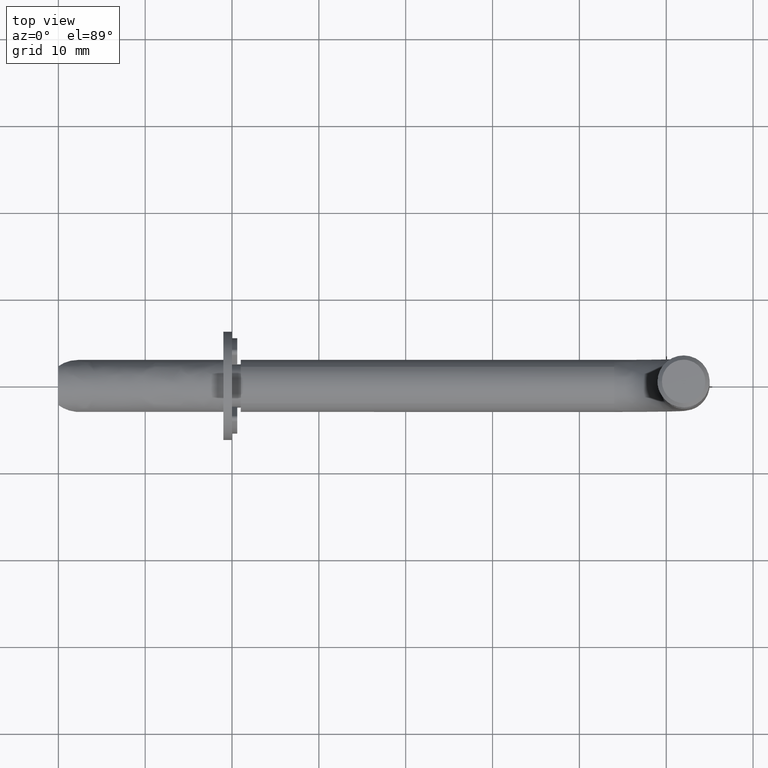
[diagram: clean part render]
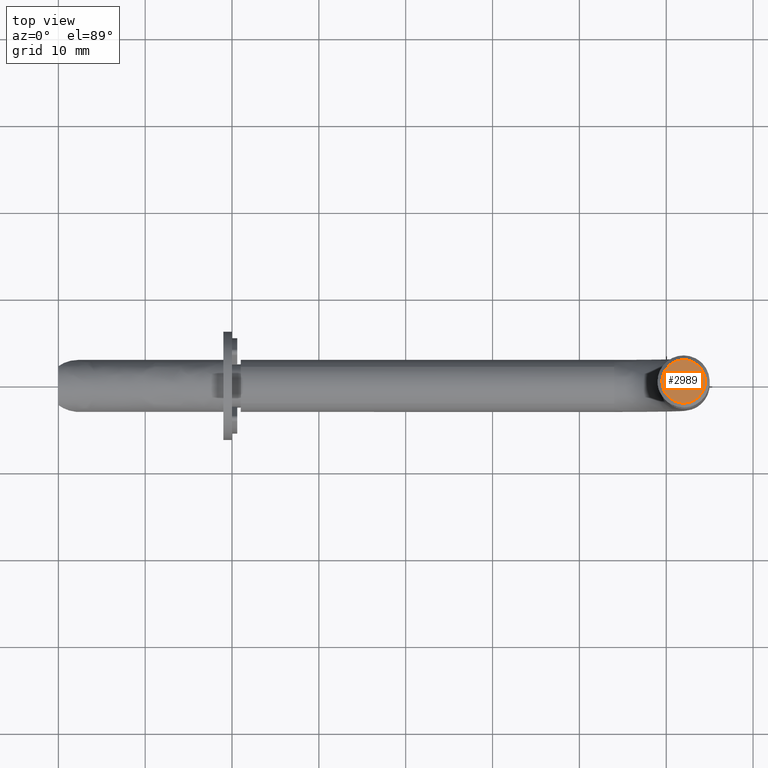
[diagram: same view with one face highlighted and labeled with its STEP entity id]
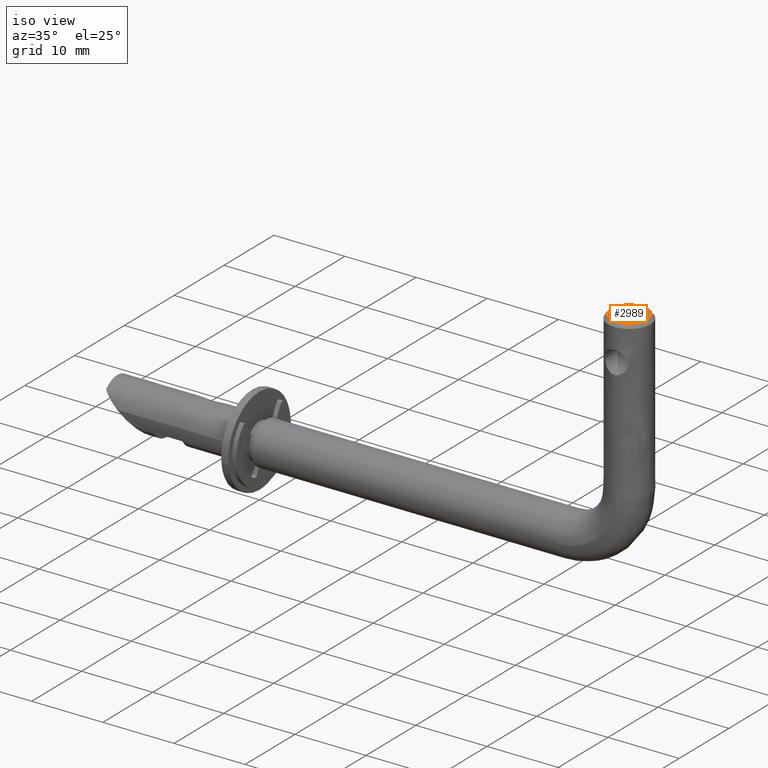
[diagram: same view with one face highlighted and labeled with its STEP entity id]
A machine part, top view. The second image highlights one B-rep face of the part: STEP entity #2989.
A second angle (iso view) of the same face is appended — the face is thin or edge-on in the first view.
In plain terms, the highlighted face is a freeform B-spline surface patch.
Its self-contained STEP definition (entity closure, byte-faithful):
#1473=CARTESIAN_POINT('',(71.435948886514353,2.435545382864706,45.999999999918003));
#1474=VERTEX_POINT('',#1473);
#1480=CARTESIAN_POINT('',(71.999969000000092,2.500000000000007,46.0));
#1481=VERTEX_POINT('',#1480);
#1482=CARTESIAN_POINT('',(71.999969000000092,2.500000000000007,46.0));
#1483=CARTESIAN_POINT('',(71.714276097574796,2.500000000000007,46.0));
#1484=CARTESIAN_POINT('',(71.435948886514353,2.435545382864706,45.999999999917989));
#1492=(BOUNDED_CURVE()B_SPLINE_CURVE(2,(#1482,#1483,#1484),.UNSPECIFIED.,.F.,.U.)B_SPLINE_CURVE_WITH_KNOTS((3,3),(0.0,0.038577028308984),.UNSPECIFIED.)CURVE()GEOMETRIC_REPRESENTATION_ITEM()RATIONAL_B_SPLINE_CURVE((1.0,0.954804200025295,0.923556557291162))REPRESENTATION_ITEM(''));
#1493=EDGE_CURVE('',#1481,#1474,#1492,.T.);
#1495=CARTESIAN_POINT('',(71.999969000000092,-2.499999999999993,46.0));
#1496=VERTEX_POINT('',#1495);
#1497=CARTESIAN_POINT('',(71.999969000000092,-2.499999999999993,46.0));
#1498=CARTESIAN_POINT('',(74.499969000000092,-2.499999999999993,46.000000000000007));
#1499=CARTESIAN_POINT('',(74.499969000000092,6.980256E-015,46.0));
#1500=CARTESIAN_POINT('',(74.499969000000092,2.500000000000007,46.000000000000007));
#1501=CARTESIAN_POINT('',(71.999969000000092,2.500000000000007,46.0));
#1509=(BOUNDED_CURVE()B_SPLINE_CURVE(2,(#1497,#1498,#1499,#1500,#1501),.UNSPECIFIED.,.F.,.U.)B_SPLINE_CURVE_WITH_KNOTS((3,2,3),(0.500000000000000,0.750000000000000,1.0),.UNSPECIFIED.)CURVE()GEOMETRIC_REPRESENTATION_ITEM()RATIONAL_B_SPLINE_CURVE((1.0,0.707106781186548,1.0,0.707106781186548,1.0))REPRESENTATION_ITEM(''));
#1510=EDGE_CURVE('',#1496,#1481,#1509,.T.);
#1512=CARTESIAN_POINT('',(69.500064192235016,0.021816339568837,45.999999999888182));
#1513=VERTEX_POINT('',#1512);
#1514=CARTESIAN_POINT('',(69.500064192235016,0.021816339568837,45.999999999888168));
#1515=CARTESIAN_POINT('',(69.499969000000092,0.010908377873728,46.0));
#1516=CARTESIAN_POINT('',(69.499969000000092,6.980256E-015,46.0));
#1517=CARTESIAN_POINT('',(69.499969000000107,-2.499999999999993,46.000000000000007));
#1518=CARTESIAN_POINT('',(71.999969000000092,-2.499999999999993,46.0));
#1526=(BOUNDED_CURVE()B_SPLINE_CURVE(2,(#1514,#1515,#1516,#1517,#1518),.UNSPECIFIED.,.F.,.U.)B_SPLINE_CURVE_WITH_KNOTS((3,2,3),(0.248460105549188,0.250000000000000,0.500000000000000),.UNSPECIFIED.)CURVE()GEOMETRIC_REPRESENTATION_ITEM()RATIONAL_B_SPLINE_CURVE((0.996414027832355,0.998195901430675,1.0,0.707106781186548,1.0))REPRESENTATION_ITEM(''));
#1527=EDGE_CURVE('',#1513,#1496,#1526,.T.);
#1629=CARTESIAN_POINT('',(71.435948886514353,2.435545382864705,45.999999999917996));
#1630=CARTESIAN_POINT('',(69.517250884501451,1.991216045349512,46.0));
#1631=CARTESIAN_POINT('',(69.500064192235016,0.021816339568837,45.999999999888168));
#1639=(BOUNDED_CURVE()B_SPLINE_CURVE(2,(#1629,#1630,#1631),.UNSPECIFIED.,.F.,.U.)B_SPLINE_CURVE_WITH_KNOTS((3,3),(0.038577028308984,0.248460105549188),.UNSPECIFIED.)CURVE()GEOMETRIC_REPRESENTATION_ITEM()RATIONAL_B_SPLINE_CURVE((0.923556557291162,0.753549905637929,0.996414027832355))REPRESENTATION_ITEM(''));
#1640=EDGE_CURVE('',#1474,#1513,#1639,.T.);
#2978=CARTESIAN_POINT('',(69.250315586985437,-2.749749990309023,46.0));
#2979=CARTESIAN_POINT('',(69.250315586985437,2.749750124419488,46.0));
#2980=CARTESIAN_POINT('',(74.749714904522264,-2.749749990309023,46.0));
#2981=CARTESIAN_POINT('',(74.749714904522264,2.749750124419488,46.0));
#2982=B_SPLINE_SURFACE_WITH_KNOTS('',1,1,((#2978,#2980),(#2979,#2981)),.UNSPECIFIED.,.F.,.F.,.U.,(2,2),(2,2),(0.0,5.499500114728511),(0.0,5.499399317536827),.UNSPECIFIED.);
#2983=ORIENTED_EDGE('',*,*,#1493,.T.);
#2984=ORIENTED_EDGE('',*,*,#1640,.T.);
#2985=ORIENTED_EDGE('',*,*,#1527,.T.);
#2986=ORIENTED_EDGE('',*,*,#1510,.T.);
#2987=EDGE_LOOP('',(#2983,#2984,#2985,#2986));
#2988=FACE_OUTER_BOUND('',#2987,.T.);
#2989=ADVANCED_FACE('',(#2988),#2982,.F.);